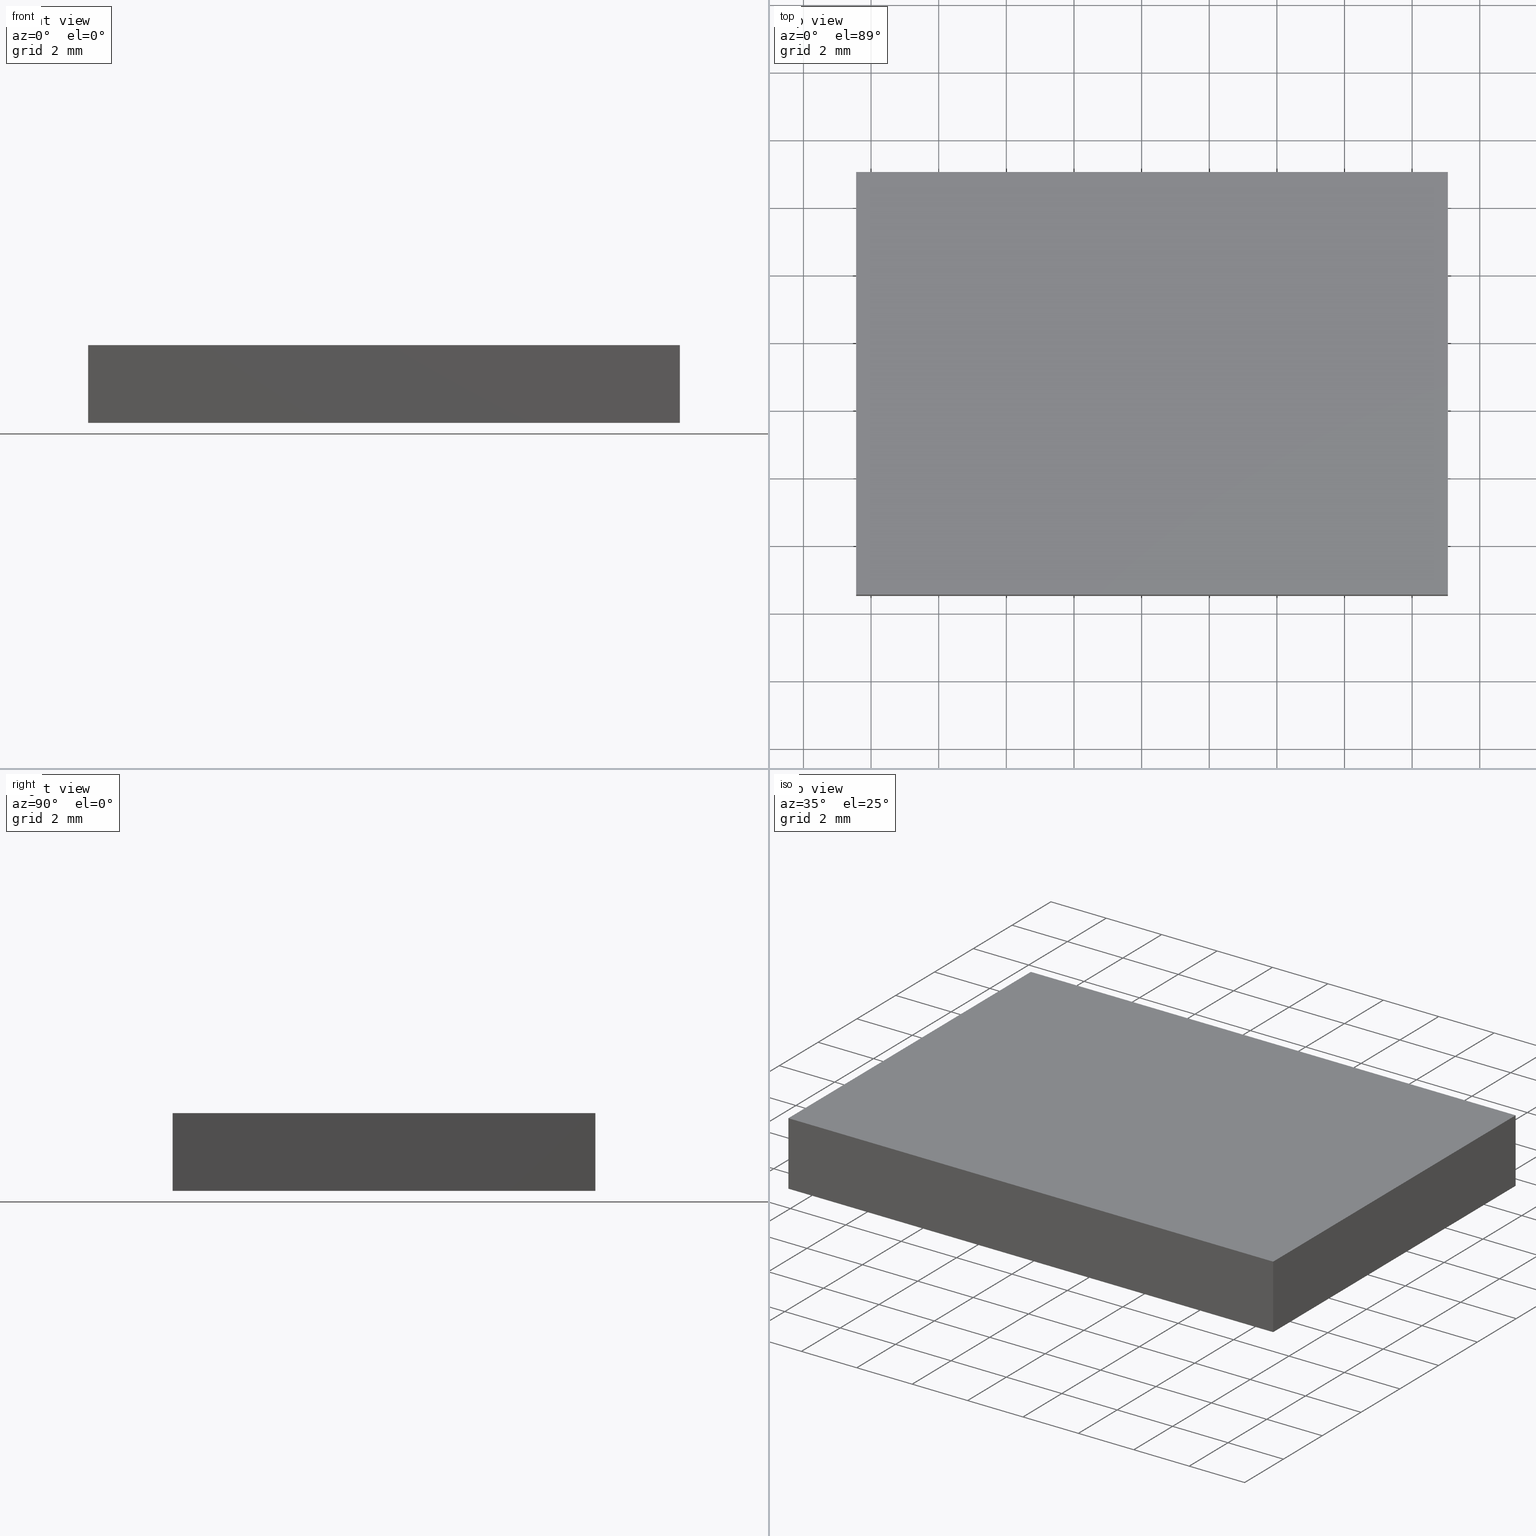
[diagram: canonical four-view strip — front | top / right | iso, engineering-drawing reading convention]
A machine part, canonical four-view strip (front | top / right | iso — engineering-drawing reading convention). The complete STEP part file that produces these views, byte-faithful:
ISO-10303-21;
HEADER;
FILE_DESCRIPTION (( 'STEP AP214' ),
    '1' );
FILE_NAME ('302509.STEP',
    '2019-08-13T03:11:09',
    ( '' ),
    ( '' ),
    'SwSTEP 2.0',
    'SolidWorks 2016',
    '' );
FILE_SCHEMA (( 'AUTOMOTIVE_DESIGN' ));
ENDSEC;

DATA;
#1 =( NAMED_UNIT ( * ) PLANE_ANGLE_UNIT ( ) SI_UNIT ( $, .RADIAN. ) );
#2 = FACE_OUTER_BOUND ( 'NONE', #117, .T. ) ;
#3 =( NAMED_UNIT ( * ) SI_UNIT ( $, .STERADIAN. ) SOLID_ANGLE_UNIT ( ) );
#4 = ORIENTED_EDGE ( 'NONE', *, *, #139, .F. ) ;
#5 = PRODUCT_RELATED_PRODUCT_CATEGORY ( 'part', '', ( #99 ) ) ;
#6 = PLANE ( 'NONE',  #130 ) ;
#7 = CARTESIAN_POINT ( 'NONE',  ( 63.05749197114184300, 24.53162091726329700, 0.0000000000000000000 ) ) ;
#8 = CARTESIAN_POINT ( 'NONE',  ( 45.55749197114184300, 37.03162091726329000, 2.299999999999999800 ) ) ;
#9 = ORIENTED_EDGE ( 'NONE', *, *, #150, .F. ) ;
#10 = CARTESIAN_POINT ( 'NONE',  ( 63.05749197114184300, 24.53162091726329700, 2.299999999999999800 ) ) ;
#11 = ADVANCED_FACE ( 'NONE', ( #2 ), #174, .F. ) ;
#12 = SURFACE_STYLE_USAGE ( .BOTH. , #144 ) ;
#13 = APPLICATION_PROTOCOL_DEFINITION ( 'draft international standard', 'automotive_design', 1998, #29 ) ;
#14 = AXIS2_PLACEMENT_3D ( 'NONE', #65, #191, #23 ) ;
#15 = ORIENTED_EDGE ( 'NONE', *, *, #56, .F. ) ;
#16 = ORIENTED_EDGE ( 'NONE', *, *, #114, .T. ) ;
#17 = DIRECTION ( 'NONE',  ( 1.110223024625156700E-015, 1.000000000000000000, -0.0000000000000000000 ) ) ;
#18 = ORIENTED_EDGE ( 'NONE', *, *, #200, .F. ) ;
#19 = PLANE ( 'NONE',  #35 ) ;
#20 = UNCERTAINTY_MEASURE_WITH_UNIT (LENGTH_MEASURE( 1.000000000000000100E-005 ), #25, 'distance_accuracy_value', 'NONE');
#21 = CARTESIAN_POINT ( 'NONE',  ( 45.55749197114184300, 37.03162091726329000, 0.0000000000000000000 ) ) ;
#22 = DIRECTION ( 'NONE',  ( -0.0000000000000000000, -0.0000000000000000000, -1.000000000000000000 ) ) ;
#23 = DIRECTION ( 'NONE',  ( 1.000000000000000000, 3.965082230804128700E-016, 0.0000000000000000000 ) ) ;
#24 = VECTOR ( 'NONE', #22, 1000.000000000000000 ) ;
#25 =( LENGTH_UNIT ( ) NAMED_UNIT ( * ) SI_UNIT ( .MILLI., .METRE. ) );
#26 = CARTESIAN_POINT ( 'NONE',  ( 63.05749197114184300, 24.53162091726329700, 2.299999999999999800 ) ) ;
#27 = EDGE_LOOP ( 'NONE', ( #172, #68, #55, #102 ) ) ;
#28 =( NAMED_UNIT ( * ) SI_UNIT ( $, .STERADIAN. ) SOLID_ANGLE_UNIT ( ) );
#29 = APPLICATION_CONTEXT ( 'automotive_design' ) ;
#30 = VECTOR ( 'NONE', #161, 1000.000000000000000 ) ;
#31 = ORIENTED_EDGE ( 'NONE', *, *, #133, .F. ) ;
#32 = VERTEX_POINT ( 'NONE', #171 ) ;
#33 = FACE_OUTER_BOUND ( 'NONE', #180, .T. ) ;
#34 = FILL_AREA_STYLE_COLOUR ( '', #100 ) ;
#35 = AXIS2_PLACEMENT_3D ( 'NONE', #123, #38, #158 ) ;
#36 = ORIENTED_EDGE ( 'NONE', *, *, #133, .T. ) ;
#37 = CARTESIAN_POINT ( 'NONE',  ( 63.05749197114185700, 37.03162091726329700, 2.299999999999999800 ) ) ;
#38 = DIRECTION ( 'NONE',  ( 0.0000000000000000000, 0.0000000000000000000, 1.000000000000000000 ) ) ;
#39 = LINE ( 'NONE', #98, #67 ) ;
#40 = AXIS2_PLACEMENT_3D ( 'NONE', #105, #190, #90 ) ;
#41 = DIRECTION ( 'NONE',  ( -0.0000000000000000000, 0.0000000000000000000, -1.000000000000000000 ) ) ;
#42 = APPLICATION_CONTEXT ( 'automotive_design' ) ;
#43 = MECHANICAL_DESIGN_GEOMETRIC_PRESENTATION_REPRESENTATION (  '', ( #169 ), #119 ) ;
#44 = FACE_OUTER_BOUND ( 'NONE', #122, .T. ) ;
#45 = LINE ( 'NONE', #132, #160 ) ;
#46 = LINE ( 'NONE', #37, #96 ) ;
#47 = AXIS2_PLACEMENT_3D ( 'NONE', #59, #170, #75 ) ;
#48 = FACE_OUTER_BOUND ( 'NONE', #50, .T. ) ;
#49 = PRODUCT_DEFINITION ( 'δ֪', '', #179, #74 ) ;
#50 = EDGE_LOOP ( 'NONE', ( #112, #154, #4, #70 ) ) ;
#51 = CLOSED_SHELL ( 'NONE', ( #159, #11, #109, #196, #66, #91 ) ) ;
#52 = DIRECTION ( 'NONE',  ( 1.110223024625156700E-015, 1.000000000000000000, -0.0000000000000000000 ) ) ;
#53 = LINE ( 'NONE', #116, #30 ) ;
#54 = DIRECTION ( 'NONE',  ( -0.0000000000000000000, -0.0000000000000000000, -1.000000000000000000 ) ) ;
#55 = ORIENTED_EDGE ( 'NONE', *, *, #150, .T. ) ;
#56 = EDGE_CURVE ( 'NONE', #88, #181, #39, .T. ) ;
#57 = ORIENTED_EDGE ( 'NONE', *, *, #82, .F. ) ;
#58 = LINE ( 'NONE', #138, #24 ) ;
#59 = CARTESIAN_POINT ( 'NONE',  ( 0.0000000000000000000, 0.0000000000000000000, 2.299999999999999800 ) ) ;
#60 = ADVANCED_BREP_SHAPE_REPRESENTATION ( '302509', ( #73, #92 ), #103 ) ;
#61 = ORIENTED_EDGE ( 'NONE', *, *, #166, .F. ) ;
#62 = EDGE_CURVE ( 'NONE', #32, #186, #45, .T. ) ;
#63 = SURFACE_STYLE_USAGE ( .BOTH. , #155 ) ;
#64 = DIRECTION ( 'NONE',  ( -1.000000000000000000, -3.965082230804128700E-016, -0.0000000000000000000 ) ) ;
#65 = CARTESIAN_POINT ( 'NONE',  ( 45.55749197114184300, 37.03162091726329000, 2.299999999999999800 ) ) ;
#66 = ADVANCED_FACE ( 'NONE', ( #97 ), #153, .T. ) ;
#67 = VECTOR ( 'NONE', #17, 1000.000000000000000 ) ;
#68 = ORIENTED_EDGE ( 'NONE', *, *, #166, .T. ) ;
#69 = DIRECTION ( 'NONE',  ( -0.0000000000000000000, -0.0000000000000000000, -1.000000000000000000 ) ) ;
#70 = ORIENTED_EDGE ( 'NONE', *, *, #200, .T. ) ;
#71 = PRODUCT_DEFINITION_SHAPE ( 'NONE', 'NONE',  #49 ) ;
#72 = SURFACE_STYLE_FILL_AREA ( #84 ) ;
#73 = MANIFOLD_SOLID_BREP ( '͹̨-����1', #51 ) ;
#74 = PRODUCT_DEFINITION_CONTEXT ( 'detailed design', #29, 'design' ) ;
#75 = DIRECTION ( 'NONE',  ( 1.000000000000000000, 0.0000000000000000000, -0.0000000000000000000 ) ) ;
#76 = DIRECTION ( 'NONE',  ( -1.000000000000000000, 1.982541115402066100E-016, 0.0000000000000000000 ) ) ;
#77 = CARTESIAN_POINT ( 'NONE',  ( 45.55749197114184300, 37.03162091726329000, 2.299999999999999800 ) ) ;
#78 = DIRECTION ( 'NONE',  ( 1.000000000000000000, 0.0000000000000000000, -0.0000000000000000000 ) ) ;
#79 = CARTESIAN_POINT ( 'NONE',  ( 63.05749197114185700, 37.03162091726329700, 0.0000000000000000000 ) ) ;
#80 = CARTESIAN_POINT ( 'NONE',  ( 45.55749197114184300, 24.53162091726330000, 0.0000000000000000000 ) ) ;
#81 = VECTOR ( 'NONE', #64, 1000.000000000000000 ) ;
#82 = EDGE_CURVE ( 'NONE', #187, #145, #53, .T. ) ;
#83 = PRODUCT_CONTEXT ( 'NONE', #42, 'mechanical' ) ;
#84 = FILL_AREA_STYLE ('',( #194 ) ) ;
#85 = LINE ( 'NONE', #106, #113 ) ;
#86 = ORIENTED_EDGE ( 'NONE', *, *, #129, .F. ) ;
#87 = DIRECTION ( 'NONE',  ( 1.982541115402066100E-016, 1.000000000000000000, -0.0000000000000000000 ) ) ;
#88 = VERTEX_POINT ( 'NONE', #7 ) ;
#89 = CARTESIAN_POINT ( 'NONE',  ( 45.55749197114184300, 37.03162091726329000, 0.0000000000000000000 ) ) ;
#90 = DIRECTION ( 'NONE',  ( -1.110223024625156700E-015, -1.000000000000000000, 0.0000000000000000000 ) ) ;
#91 = ADVANCED_FACE ( 'NONE', ( #44 ), #19, .F. ) ;
#92 = AXIS2_PLACEMENT_3D ( 'NONE', #121, #178, #165 ) ;
#93 = VECTOR ( 'NONE', #140, 1000.000000000000000 ) ;
#94 = ORIENTED_EDGE ( 'NONE', *, *, #62, .F. ) ;
#95 = UNCERTAINTY_MEASURE_WITH_UNIT (LENGTH_MEASURE( 1.000000000000000100E-005 ), #126, 'distance_accuracy_value', 'NONE');
#96 = VECTOR ( 'NONE', #52, 1000.000000000000000 ) ;
#97 = FACE_OUTER_BOUND ( 'NONE', #27, .T. ) ;
#98 = CARTESIAN_POINT ( 'NONE',  ( 63.05749197114185700, 37.03162091726329700, 0.0000000000000000000 ) ) ;
#99 = PRODUCT ( '302509', '302509', '', ( #83 ) ) ;
#100 = COLOUR_RGB ( '',1.000000000000000000, 1.000000000000000000, 1.000000000000000000 ) ;
#101 = ORIENTED_EDGE ( 'NONE', *, *, #184, .F. ) ;
#102 = ORIENTED_EDGE ( 'NONE', *, *, #62, .T. ) ;
#103 =( GEOMETRIC_REPRESENTATION_CONTEXT ( 3 ) GLOBAL_UNCERTAINTY_ASSIGNED_CONTEXT ( ( #20 ) ) GLOBAL_UNIT_ASSIGNED_CONTEXT ( ( #25, #197, #199 ) ) REPRESENTATION_CONTEXT ( 'NONE', 'WORKASPACE' ) );
#104 = CARTESIAN_POINT ( 'NONE',  ( 45.55749197114184300, 24.53162091726330000, 2.299999999999999800 ) ) ;
#105 = CARTESIAN_POINT ( 'NONE',  ( 63.05749197114185700, 37.03162091726329700, 2.299999999999999800 ) ) ;
#106 = CARTESIAN_POINT ( 'NONE',  ( 45.55749197114184300, 24.53162091726330000, 2.299999999999999800 ) ) ;
#107 = CARTESIAN_POINT ( 'NONE',  ( 45.55749197114184300, 24.53162091726330000, 0.0000000000000000000 ) ) ;
#108 = COLOUR_RGB ( '',1.000000000000000000, 1.000000000000000000, 1.000000000000000000 ) ;
#109 = ADVANCED_FACE ( 'NONE', ( #167 ), #177, .F. ) ;
#110 = PRESENTATION_LAYER_ASSIGNMENT (  '', '', ( #169 ) ) ;
#111 = PRESENTATION_STYLE_ASSIGNMENT (( #63 ) ) ;
#112 = ORIENTED_EDGE ( 'NONE', *, *, #82, .T. ) ;
#113 = VECTOR ( 'NONE', #164, 1000.000000000000000 ) ;
#114 = EDGE_CURVE ( 'NONE', #162, #145, #202, .T. ) ;
#115 = EDGE_LOOP ( 'NONE', ( #152, #101, #9, #134 ) ) ;
#116 = CARTESIAN_POINT ( 'NONE',  ( 45.55749197114184300, 37.03162091726329000, 0.0000000000000000000 ) ) ;
#117 = EDGE_LOOP ( 'NONE', ( #36, #198, #61, #16 ) ) ;
#118 = CARTESIAN_POINT ( 'NONE',  ( 63.05749197114185700, 37.03162091726329700, 2.299999999999999800 ) ) ;
#119 =( GEOMETRIC_REPRESENTATION_CONTEXT ( 3 ) GLOBAL_UNCERTAINTY_ASSIGNED_CONTEXT ( ( #135 ) ) GLOBAL_UNIT_ASSIGNED_CONTEXT ( ( #185, #1, #3 ) ) REPRESENTATION_CONTEXT ( 'NONE', 'WORKASPACE' ) );
#120 = CARTESIAN_POINT ( 'NONE',  ( 45.55749197114184300, 24.53162091726330000, 2.299999999999999800 ) ) ;
#121 = CARTESIAN_POINT ( 'NONE',  ( 0.0000000000000000000, 0.0000000000000000000, 0.0000000000000000000 ) ) ;
#122 = EDGE_LOOP ( 'NONE', ( #57, #86, #15, #31 ) ) ;
#123 = CARTESIAN_POINT ( 'NONE',  ( 0.0000000000000000000, 0.0000000000000000000, 0.0000000000000000000 ) ) ;
#124 = CARTESIAN_POINT ( 'NONE',  ( 45.55749197114184300, 37.03162091726329000, 2.299999999999999800 ) ) ;
#125 =( NAMED_UNIT ( * ) PLANE_ANGLE_UNIT ( ) SI_UNIT ( $, .RADIAN. ) );
#126 =( LENGTH_UNIT ( ) NAMED_UNIT ( * ) SI_UNIT ( .MILLI., .METRE. ) );
#127 = EDGE_CURVE ( 'NONE', #149, #88, #151, .T. ) ;
#128 = LINE ( 'NONE', #89, #81 ) ;
#129 = EDGE_CURVE ( 'NONE', #181, #187, #128, .T. ) ;
#130 = AXIS2_PLACEMENT_3D ( 'NONE', #8, #78, #41 ) ;
#131 = SURFACE_STYLE_FILL_AREA ( #136 ) ;
#132 = CARTESIAN_POINT ( 'NONE',  ( 45.55749197114184300, 37.03162091726329000, 2.299999999999999800 ) ) ;
#133 = EDGE_CURVE ( 'NONE', #145, #88, #193, .T. ) ;
#134 = ORIENTED_EDGE ( 'NONE', *, *, #127, .T. ) ;
#135 = UNCERTAINTY_MEASURE_WITH_UNIT (LENGTH_MEASURE( 1.000000000000000100E-005 ), #185, 'distance_accuracy_value', 'NONE');
#136 = FILL_AREA_STYLE ('',( #34 ) ) ;
#137 = PRESENTATION_LAYER_ASSIGNMENT (  '', '', ( #146 ) ) ;
#138 = CARTESIAN_POINT ( 'NONE',  ( 45.55749197114184300, 37.03162091726329000, 2.299999999999999800 ) ) ;
#139 = EDGE_CURVE ( 'NONE', #186, #162, #176, .T. ) ;
#140 = DIRECTION ( 'NONE',  ( -0.0000000000000000000, -0.0000000000000000000, -1.000000000000000000 ) ) ;
#141 = MECHANICAL_DESIGN_GEOMETRIC_PRESENTATION_REPRESENTATION (  '', ( #146 ), #157 ) ;
#142 = CARTESIAN_POINT ( 'NONE',  ( 45.55749197114184300, 24.53162091726330000, 2.299999999999999800 ) ) ;
#143 = VECTOR ( 'NONE', #54, 1000.000000000000000 ) ;
#144 = SURFACE_SIDE_STYLE ('',( #72 ) ) ;
#145 = VERTEX_POINT ( 'NONE', #107 ) ;
#146 = STYLED_ITEM ( 'NONE', ( #168 ), #60 ) ;
#147 = APPLICATION_PROTOCOL_DEFINITION ( 'draft international standard', 'automotive_design', 1998, #42 ) ;
#148 = VECTOR ( 'NONE', #69, 1000.000000000000000 ) ;
#149 = VERTEX_POINT ( 'NONE', #26 ) ;
#150 = EDGE_CURVE ( 'NONE', #149, #32, #46, .T. ) ;
#151 = LINE ( 'NONE', #10, #93 ) ;
#152 = ORIENTED_EDGE ( 'NONE', *, *, #56, .T. ) ;
#153 = PLANE ( 'NONE',  #47 ) ;
#154 = ORIENTED_EDGE ( 'NONE', *, *, #114, .F. ) ;
#155 = SURFACE_SIDE_STYLE ('',( #131 ) ) ;
#156 = DIRECTION ( 'NONE',  ( 1.000000000000000000, -1.982541115402065800E-016, 0.0000000000000000000 ) ) ;
#157 =( GEOMETRIC_REPRESENTATION_CONTEXT ( 3 ) GLOBAL_UNCERTAINTY_ASSIGNED_CONTEXT ( ( #95 ) ) GLOBAL_UNIT_ASSIGNED_CONTEXT ( ( #126, #125, #28 ) ) REPRESENTATION_CONTEXT ( 'NONE', 'WORKASPACE' ) );
#158 = DIRECTION ( 'NONE',  ( 1.000000000000000000, 0.0000000000000000000, -0.0000000000000000000 ) ) ;
#159 = ADVANCED_FACE ( 'NONE', ( #48 ), #6, .F. ) ;
#160 = VECTOR ( 'NONE', #188, 1000.000000000000000 ) ;
#161 = DIRECTION ( 'NONE',  ( 0.0000000000000000000, -1.000000000000000000, 0.0000000000000000000 ) ) ;
#162 = VERTEX_POINT ( 'NONE', #142 ) ;
#163 = VECTOR ( 'NONE', #156, 1000.000000000000000 ) ;
#164 = DIRECTION ( 'NONE',  ( 1.000000000000000000, -1.982541115402065800E-016, 0.0000000000000000000 ) ) ;
#165 = DIRECTION ( 'NONE',  ( 1.000000000000000000, 0.0000000000000000000, 0.0000000000000000000 ) ) ;
#166 = EDGE_CURVE ( 'NONE', #162, #149, #85, .T. ) ;
#167 = FACE_OUTER_BOUND ( 'NONE', #115, .T. ) ;
#168 = PRESENTATION_STYLE_ASSIGNMENT (( #12 ) ) ;
#169 = STYLED_ITEM ( 'NONE', ( #111 ), #73 ) ;
#170 = DIRECTION ( 'NONE',  ( 0.0000000000000000000, 0.0000000000000000000, 1.000000000000000000 ) ) ;
#171 = CARTESIAN_POINT ( 'NONE',  ( 63.05749197114185700, 37.03162091726329700, 2.299999999999999800 ) ) ;
#172 = ORIENTED_EDGE ( 'NONE', *, *, #139, .T. ) ;
#173 = LINE ( 'NONE', #118, #148 ) ;
#174 = PLANE ( 'NONE',  #192 ) ;
#175 = PLANE ( 'NONE',  #14 ) ;
#176 = LINE ( 'NONE', #124, #183 ) ;
#177 = PLANE ( 'NONE',  #40 ) ;
#178 = DIRECTION ( 'NONE',  ( 0.0000000000000000000, 0.0000000000000000000, 1.000000000000000000 ) ) ;
#179 = PRODUCT_DEFINITION_FORMATION_WITH_SPECIFIED_SOURCE ( '�κ�', '', #99, .NOT_KNOWN. ) ;
#180 = EDGE_LOOP ( 'NONE', ( #182, #18, #94, #201 ) ) ;
#181 = VERTEX_POINT ( 'NONE', #79 ) ;
#182 = ORIENTED_EDGE ( 'NONE', *, *, #129, .T. ) ;
#183 = VECTOR ( 'NONE', #195, 1000.000000000000000 ) ;
#184 = EDGE_CURVE ( 'NONE', #32, #181, #173, .T. ) ;
#185 =( LENGTH_UNIT ( ) NAMED_UNIT ( * ) SI_UNIT ( .MILLI., .METRE. ) );
#186 = VERTEX_POINT ( 'NONE', #77 ) ;
#187 = VERTEX_POINT ( 'NONE', #21 ) ;
#188 = DIRECTION ( 'NONE',  ( -1.000000000000000000, -3.965082230804128700E-016, -0.0000000000000000000 ) ) ;
#189 = SHAPE_DEFINITION_REPRESENTATION ( #71, #60 ) ;
#190 = DIRECTION ( 'NONE',  ( -1.000000000000000000, 1.110223024625156700E-015, 0.0000000000000000000 ) ) ;
#191 = DIRECTION ( 'NONE',  ( 3.965082230804128700E-016, -1.000000000000000000, 0.0000000000000000000 ) ) ;
#192 = AXIS2_PLACEMENT_3D ( 'NONE', #104, #87, #76 ) ;
#193 = LINE ( 'NONE', #80, #163 ) ;
#194 = FILL_AREA_STYLE_COLOUR ( '', #108 ) ;
#195 = DIRECTION ( 'NONE',  ( 0.0000000000000000000, -1.000000000000000000, 0.0000000000000000000 ) ) ;
#196 = ADVANCED_FACE ( 'NONE', ( #33 ), #175, .F. ) ;
#197 =( NAMED_UNIT ( * ) PLANE_ANGLE_UNIT ( ) SI_UNIT ( $, .RADIAN. ) );
#198 = ORIENTED_EDGE ( 'NONE', *, *, #127, .F. ) ;
#199 =( NAMED_UNIT ( * ) SI_UNIT ( $, .STERADIAN. ) SOLID_ANGLE_UNIT ( ) );
#200 = EDGE_CURVE ( 'NONE', #186, #187, #58, .T. ) ;
#201 = ORIENTED_EDGE ( 'NONE', *, *, #184, .T. ) ;
#202 = LINE ( 'NONE', #120, #143 ) ;
ENDSEC;
END-ISO-10303-21;
